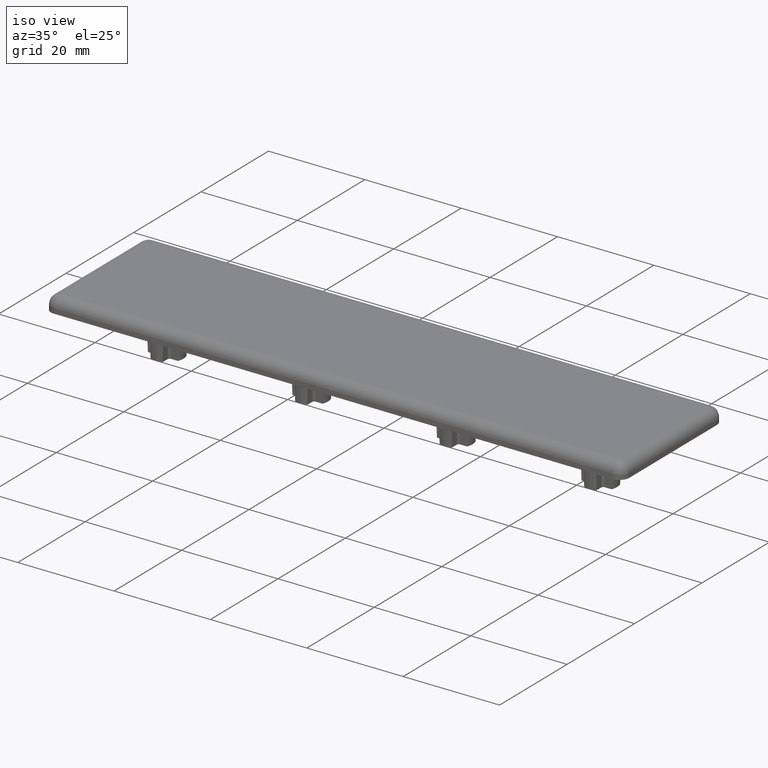
[diagram: clean part render]
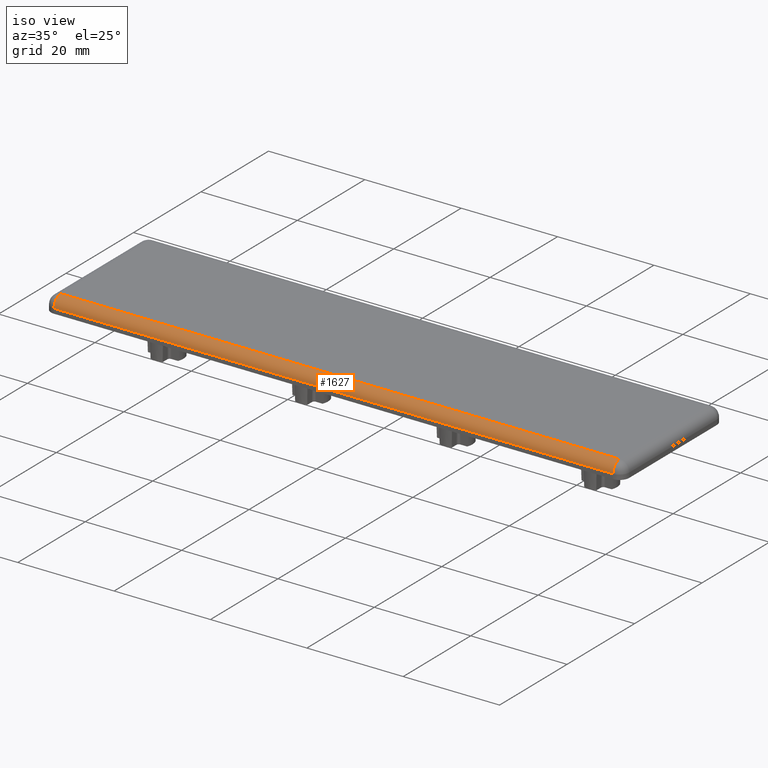
[diagram: same view with one face highlighted and labeled with its STEP entity id]
A machine part, iso view. The second image highlights one B-rep face of the part: STEP entity #1627.
In plain terms, the highlighted cylindrical surface (edge-blend (fillet) strip) has radius 2 mm, axis along (1, 0, 0).
Its self-contained STEP definition (entity closure, byte-faithful):
#22=CYLINDRICAL_SURFACE('',#1800,2.);
#196=FACE_OUTER_BOUND('',#291,.T.);
#291=EDGE_LOOP('',(#1478,#1479,#1480,#1481));
#395=LINE('',#2736,#523);
#421=LINE('',#2820,#549);
#523=VECTOR('',#2171,116.);
#549=VECTOR('',#2263,116.);
#620=CIRCLE('',#1776,2.);
#622=CIRCLE('',#1780,2.);
#762=VERTEX_POINT('',#2732);
#764=VERTEX_POINT('',#2735);
#775=VERTEX_POINT('',#2768);
#778=VERTEX_POINT('',#2778);
#983=EDGE_CURVE('',#764,#762,#395,.T.);
#1000=EDGE_CURVE('',#762,#775,#620,.F.);
#1004=EDGE_CURVE('',#778,#764,#622,.F.);
#1025=EDGE_CURVE('',#775,#778,#421,.T.);
#1478=ORIENTED_EDGE('',*,*,#1004,.T.);
#1479=ORIENTED_EDGE('',*,*,#983,.T.);
#1480=ORIENTED_EDGE('',*,*,#1000,.T.);
#1481=ORIENTED_EDGE('',*,*,#1025,.T.);
#1627=ADVANCED_FACE('',(#196),#22,.T.);
#1776=AXIS2_PLACEMENT_3D('',#2770,#2202,#2203);
#1780=AXIS2_PLACEMENT_3D('',#2779,#2212,#2213);
#1800=AXIS2_PLACEMENT_3D('',#2819,#2261,#2262);
#2171=DIRECTION('',(-1.,-7.40148683083438E-17,0.));
#2202=DIRECTION('center_axis',(-1.,4.44089209850063E-15,0.));
#2203=DIRECTION('ref_axis',(0.,0.,1.));
#2212=DIRECTION('center_axis',(1.,0.,0.));
#2213=DIRECTION('ref_axis',(0.,-1.,0.));
#2261=DIRECTION('center_axis',(1.,7.40148683083438E-17,0.));
#2262=DIRECTION('ref_axis',(0.,-0.707106781186548,0.707106781186547));
#2263=DIRECTION('',(1.,7.40148683083438E-17,0.));
#2732=CARTESIAN_POINT('',(-58.,-13.,3.));
#2735=CARTESIAN_POINT('',(58.,-13.,3.));
#2736=CARTESIAN_POINT('',(-30.,-13.,3.));
#2768=CARTESIAN_POINT('',(-58.,-15.,1.));
#2770=CARTESIAN_POINT('Origin',(-58.,-13.,1.));
#2778=CARTESIAN_POINT('',(58.,-15.,1.));
#2779=CARTESIAN_POINT('Origin',(58.,-13.,1.));
#2819=CARTESIAN_POINT('Origin',(-30.,-13.,1.));
#2820=CARTESIAN_POINT('',(-30.,-15.,1.));